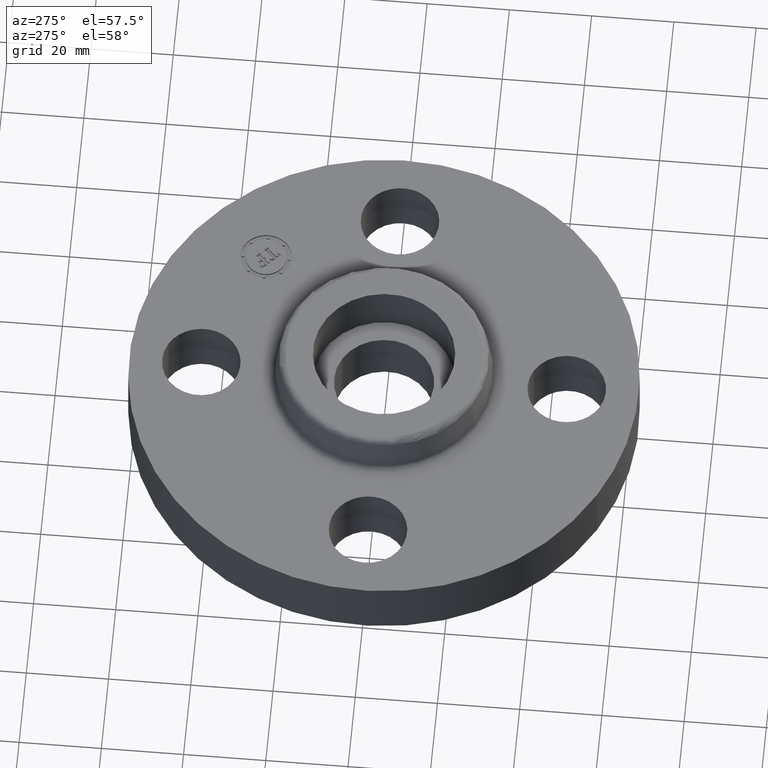
[diagram: clean part render]
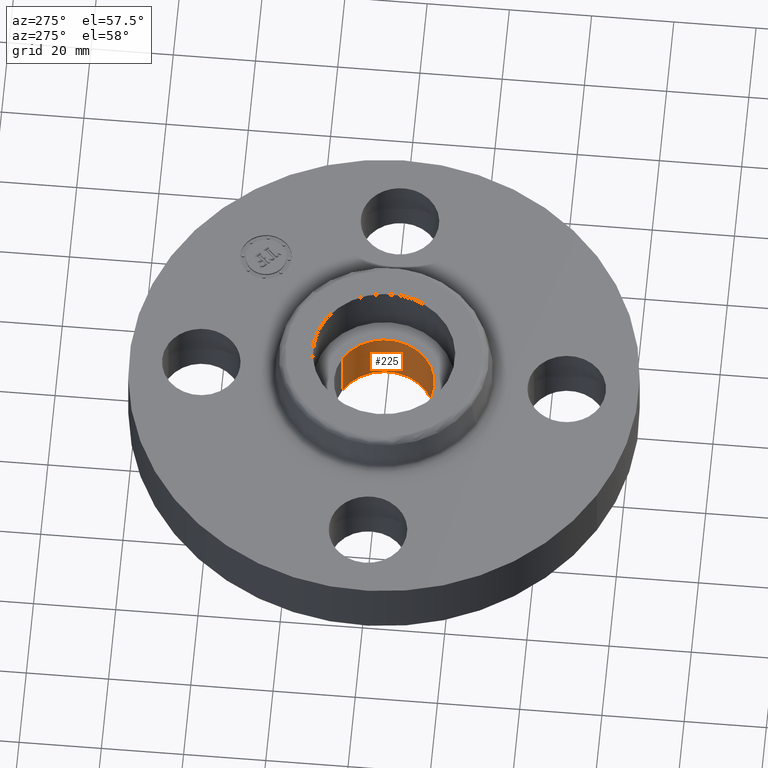
[diagram: same view with one face highlighted and labeled with its STEP entity id]
A machine part, auxiliary view. The second image highlights one B-rep face of the part: STEP entity #225.
In plain terms, the highlighted cylindrical surface (partial cylindrical patch) has radius 12.1539 mm, axis along (-0, 0, -1).
Its self-contained STEP definition (entity closure, byte-faithful):
#69=AXIS2_PLACEMENT_3D('Circle Axis2P3D',#67,#68,$) ;
#200=AXIS2_PLACEMENT_3D('Cylinder Axis2P3D',#197,#198,#199) ;
#62=CARTESIAN_POINT('Vertex',(-0.229405120206,-0.419923255851,0.500000000002)) ;
#64=CARTESIAN_POINT('Vertex',(0.229405120206,0.419923255851,0.500000000002)) ;
#67=CARTESIAN_POINT('Axis2P3D Location',(2.09805925914E-016,1.39870617276E-016,0.500000000002)) ;
#164=CARTESIAN_POINT('Line Origine',(-0.229405120223,-0.419923255866,0.21874999998)) ;
#168=CARTESIAN_POINT('Vertex',(-0.229405120223,-0.419923255866,-0.0625000000127)) ;
#175=CARTESIAN_POINT('Vertex',(0.229405120206,0.419923255879,-0.0625000000003)) ;
#178=CARTESIAN_POINT('Line Origine',(0.229405120223,0.419923255866,0.21874999998)) ;
#197=CARTESIAN_POINT('Axis2P3D Location',(0.,0.,0.468750000002)) ;
#203=CARTESIAN_POINT('Control Point',(0.229405120223,0.419923255866,-0.0625000000003)) ;
#204=CARTESIAN_POINT('Control Point',(0.295366511008,0.383888383847,-0.0625000000009)) ;
#205=CARTESIAN_POINT('Control Point',(0.354252471218,0.334902023033,-0.0625000000015)) ;
#206=CARTESIAN_POINT('Control Point',(0.402660838744,0.274806163208,-0.0625000000022)) ;
#207=CARTESIAN_POINT('Control Point',(0.473305668442,0.138871666265,-0.0625000000034)) ;
#208=CARTESIAN_POINT('Control Point',(0.48730581617,-0.0136828331305,-0.0625000000046)) ;
#209=CARTESIAN_POINT('Control Point',(0.479041511111,-0.0904069080775,-0.0625000000052)) ;
#210=CARTESIAN_POINT('Control Point',(0.432874744661,-0.236480550799,-0.0625000000065)) ;
#211=CARTESIAN_POINT('Control Point',(0.334902023033,-0.354252471218,-0.0625000000077)) ;
#212=CARTESIAN_POINT('Control Point',(0.274806163209,-0.402660838744,-0.0625000000083)) ;
#213=CARTESIAN_POINT('Control Point',(0.138871666265,-0.473305668442,-0.0625000000096)) ;
#214=CARTESIAN_POINT('Control Point',(-0.0136828331304,-0.48730581617,-0.0625000000108)) ;
#215=CARTESIAN_POINT('Control Point',(-0.0904069080775,-0.479041511111,-0.0625000000114)) ;
#216=CARTESIAN_POINT('Control Point',(-0.163443729438,-0.455958127886,-0.062500000012)) ;
#217=CARTESIAN_POINT('Control Point',(-0.229405120223,-0.419923255866,-0.0625000000127)) ;
#68=DIRECTION('Axis2P3D Direction',(0.,0.,-0.0393700787402)) ;
#165=DIRECTION('Vector Direction',(0.,0.,-0.0393700787402)) ;
#179=DIRECTION('Vector Direction',(0.,0.,-0.0393700787402)) ;
#198=DIRECTION('Axis2P3D Direction',(-0.,0.,-0.0393700787402)) ;
#199=DIRECTION('Axis2P3D XDirection',(0.0188750212049,0.0345504945626,0.)) ;
#166=VECTOR('Line Direction',#165,0.0393700787402) ;
#180=VECTOR('Line Direction',#179,0.0393700787402) ;
#220=ORIENTED_EDGE('',*,*,#182,.T.) ;
#221=ORIENTED_EDGE('',*,*,#218,.T.) ;
#222=ORIENTED_EDGE('',*,*,#170,.F.) ;
#223=ORIENTED_EDGE('',*,*,#71,.F.) ;
#225=ADVANCED_FACE('PartBody',(#224),#201,.F.) ;
#202=B_SPLINE_CURVE_WITH_KNOTS('',5,(#203,#204,#205,#206,#207,#208,#209,#210,#211,#212,#213,#214,#215,#216,#217),.UNSPECIFIED.,.F.,.U.,(6,3,3,3,6),(-19.0913014763,-9.54565073816,-1.7763568394E-015,9.54565073816,19.0913014763),.UNSPECIFIED.) ;
#70=CIRCLE('generated circle',#69,0.47849999998) ;
#201=CYLINDRICAL_SURFACE('generated cylinder',#200,0.478500000002) ;
#71=EDGE_CURVE('',#65,#63,#70,.T.) ;
#170=EDGE_CURVE('',#63,#169,#167,.T.) ;
#182=EDGE_CURVE('',#65,#176,#181,.T.) ;
#218=EDGE_CURVE('',#176,#169,#202,.T.) ;
#219=EDGE_LOOP('',(#220,#221,#222,#223)) ;
#224=FACE_OUTER_BOUND('',#219,.T.) ;
#167=LINE('Line',#164,#166) ;
#181=LINE('Line',#178,#180) ;
#63=VERTEX_POINT('',#62) ;
#65=VERTEX_POINT('',#64) ;
#169=VERTEX_POINT('',#168) ;
#176=VERTEX_POINT('',#175) ;